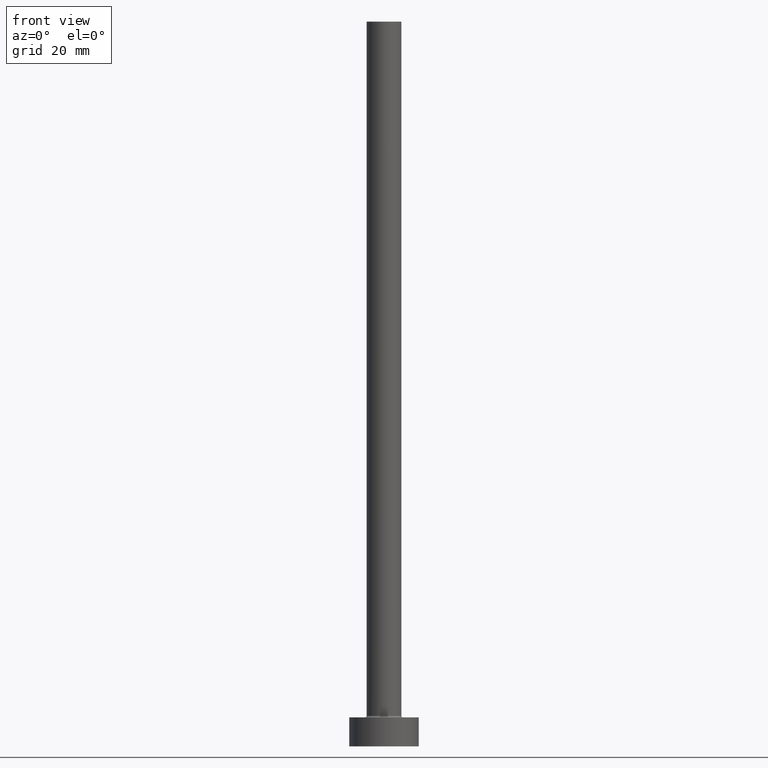
[diagram: clean part render]
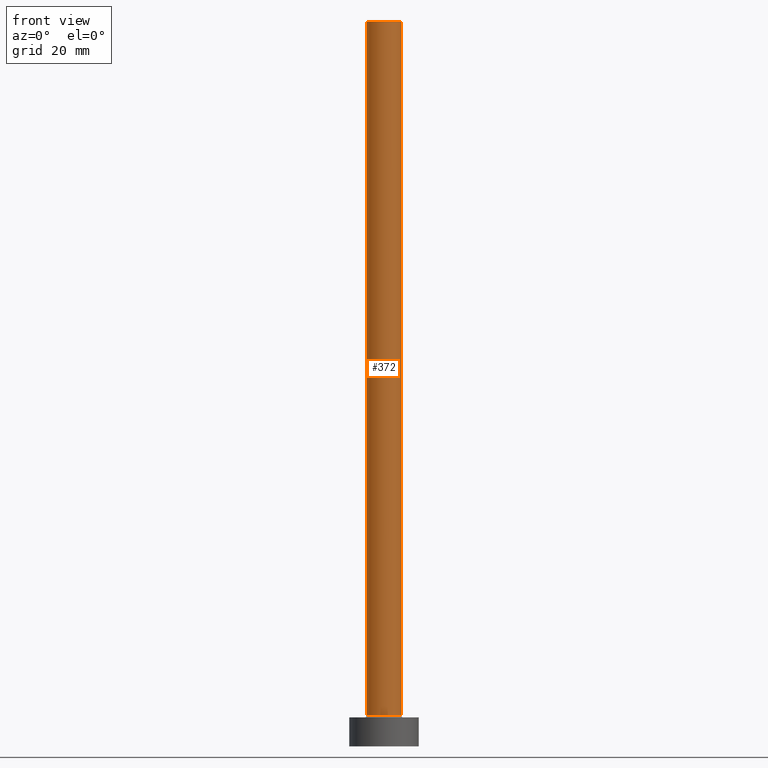
[diagram: same view with one face highlighted and labeled with its STEP entity id]
A machine part, front view. The second image highlights one B-rep face of the part: STEP entity #372.
In plain terms, the highlighted cylindrical surface (edge-blend (fillet) strip) has radius 3 mm, axis along (-0, -0, -1).
Its self-contained STEP definition (entity closure, byte-faithful):
#49 = DIRECTION ( 'NONE',  ( 1.000000000000000000, 0.000000000000000000, 0.000000000000000000 ) ) ;
#62 = CARTESIAN_POINT ( 'NONE',  ( 0.000000000000000000, 0.000000000000000000, 125.0000000000000000 ) ) ;
#72 = ORIENTED_EDGE ( 'NONE', *, *, #292, .T. ) ;
#78 = CARTESIAN_POINT ( 'NONE',  ( -3.000000000000000444, 0.000000000000000000, 125.0000000000000000 ) ) ;
#105 = DIRECTION ( 'NONE',  ( -0.000000000000000000, -0.000000000000000000, -1.000000000000000000 ) ) ;
#107 = CARTESIAN_POINT ( 'NONE',  ( 0.000000000000000000, 0.000000000000000000, 5.299999999999998934 ) ) ;
#121 = VERTEX_POINT ( 'NONE', #321 ) ;
#123 = EDGE_LOOP ( 'NONE', ( #229, #320, #192, #72 ) ) ;
#134 = DIRECTION ( 'NONE',  ( 0.000000000000000000, 0.000000000000000000, 1.000000000000000000 ) ) ;
#150 = DIRECTION ( 'NONE',  ( 0.000000000000000000, 0.000000000000000000, 1.000000000000000000 ) ) ;
#166 = DIRECTION ( 'NONE',  ( 1.000000000000000000, 0.000000000000000000, 0.000000000000000000 ) ) ;
#174 = CARTESIAN_POINT ( 'NONE',  ( 3.000000000000000444, 3.673940397442060361E-16, 5.299999999999998934 ) ) ;
#177 = CARTESIAN_POINT ( 'NONE',  ( 0.000000000000000000, 0.000000000000000000, 125.0000000000000000 ) ) ;
#179 = CARTESIAN_POINT ( 'NONE',  ( -3.000000000000000444, 0.000000000000000000, 5.299999999999998934 ) ) ;
#182 = AXIS2_PLACEMENT_3D ( 'NONE', #177, #433, #366 ) ;
#192 = ORIENTED_EDGE ( 'NONE', *, *, #416, .T. ) ;
#197 = CIRCLE ( 'NONE', #259, 3.000000000000000444 ) ;
#218 = DIRECTION ( 'NONE',  ( -0.000000000000000000, -0.000000000000000000, -1.000000000000000000 ) ) ;
#229 = ORIENTED_EDGE ( 'NONE', *, *, #398, .F. ) ;
#255 = FACE_OUTER_BOUND ( 'NONE', #123, .T. ) ;
#258 = VERTEX_POINT ( 'NONE', #461 ) ;
#259 = AXIS2_PLACEMENT_3D ( 'NONE', #62, #134, #166 ) ;
#275 = VERTEX_POINT ( 'NONE', #174 ) ;
#291 = CARTESIAN_POINT ( 'NONE',  ( 3.000000000000000444, 3.673940397442060361E-16, 125.0000000000000000 ) ) ;
#292 = EDGE_CURVE ( 'NONE', #380, #275, #443, .T. ) ;
#304 = VECTOR ( 'NONE', #105, 1000.000000000000000 ) ;
#320 = ORIENTED_EDGE ( 'NONE', *, *, #428, .F. ) ;
#321 = CARTESIAN_POINT ( 'NONE',  ( 3.000000000000000444, 3.673940397442060361E-16, 125.0000000000000000 ) ) ;
#359 = AXIS2_PLACEMENT_3D ( 'NONE', #107, #150, #49 ) ;
#366 = DIRECTION ( 'NONE',  ( -1.000000000000000000, 0.000000000000000000, 0.000000000000000000 ) ) ;
#372 = ADVANCED_FACE ( 'NONE', ( #255 ), #406, .T. ) ;
#380 = VERTEX_POINT ( 'NONE', #179 ) ;
#398 = EDGE_CURVE ( 'NONE', #121, #275, #437, .T. ) ;
#404 = LINE ( 'NONE', #78, #409 ) ;
#406 = CYLINDRICAL_SURFACE ( 'NONE', #182, 3.000000000000000444 ) ;
#409 = VECTOR ( 'NONE', #218, 1000.000000000000000 ) ;
#416 = EDGE_CURVE ( 'NONE', #258, #380, #404, .T. ) ;
#428 = EDGE_CURVE ( 'NONE', #258, #121, #197, .T. ) ;
#433 = DIRECTION ( 'NONE',  ( -0.000000000000000000, -0.000000000000000000, -1.000000000000000000 ) ) ;
#437 = LINE ( 'NONE', #291, #304 ) ;
#443 = CIRCLE ( 'NONE', #359, 3.000000000000000444 ) ;
#461 = CARTESIAN_POINT ( 'NONE',  ( -3.000000000000000444, 0.000000000000000000, 125.0000000000000000 ) ) ;